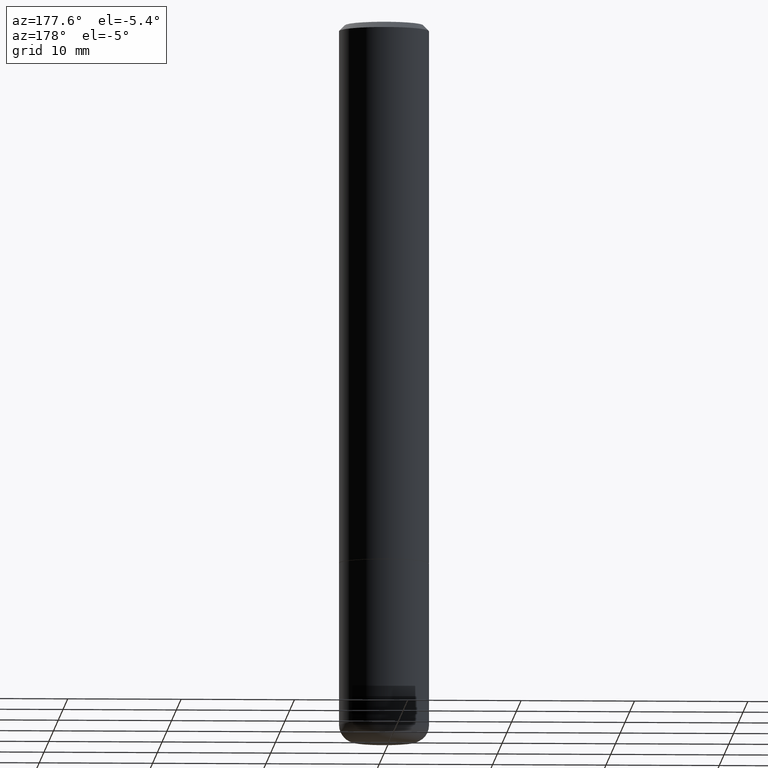
[diagram: clean part render]
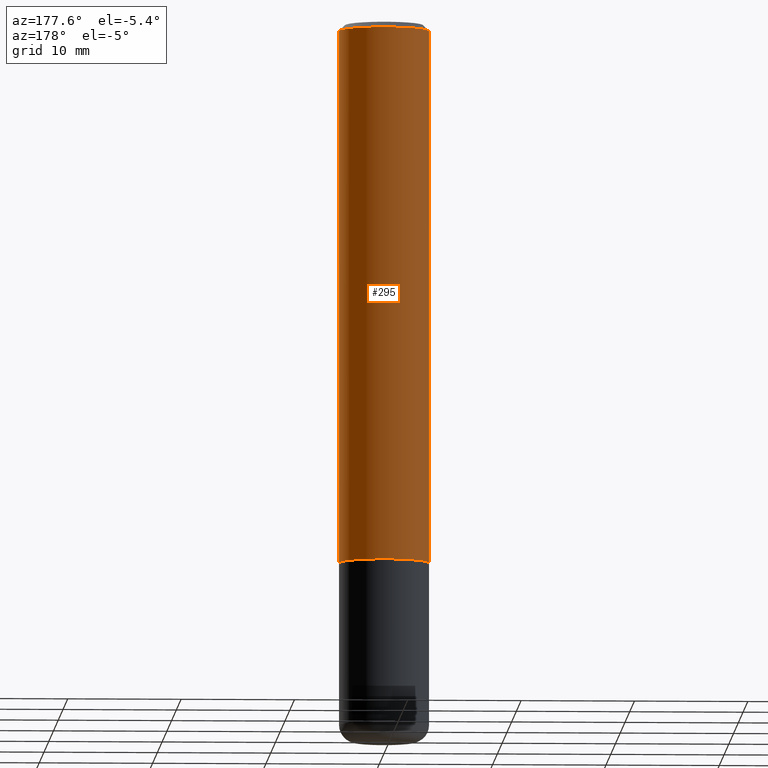
[diagram: same view with one face highlighted and labeled with its STEP entity id]
A machine part, auxiliary view. The second image highlights one B-rep face of the part: STEP entity #295.
In plain terms, the highlighted cylindrical surface (partial cylindrical patch) has radius 3.9688 mm, axis along (-0, 0, 1).
Its self-contained STEP definition (entity closure, byte-faithful):
#5 = DIRECTION ( 'NONE',  ( -2.445468806185136597E-29, 3.491481338843145583E-15, 1.000000000000000000 ) ) ;
#11 = ORIENTED_EDGE ( 'NONE', *, *, #151, .F. ) ;
#37 = VERTEX_POINT ( 'NONE', #358 ) ;
#44 = FACE_OUTER_BOUND ( 'NONE', #300, .T. ) ;
#45 = ORIENTED_EDGE ( 'NONE', *, *, #89, .T. ) ;
#57 = CARTESIAN_POINT ( 'NONE',  ( -0.1562500000000002220, -2.196209803259299803E-15, -1.874000000000000110 ) ) ;
#65 = CIRCLE ( 'NONE', #417, 0.1562500000000000278 ) ;
#68 = CARTESIAN_POINT ( 'NONE',  ( 0.1562500000000001388, -1.091087918388480160E-15, 7.619026212181157383E-30 ) ) ;
#70 = CYLINDRICAL_SURFACE ( 'NONE', #161, 0.1562500000000001388 ) ;
#80 = VERTEX_POINT ( 'NONE', #397 ) ;
#89 = EDGE_CURVE ( 'NONE', #198, #80, #115, .T. ) ;
#109 = EDGE_CURVE ( 'NONE', #37, #198, #388, .T. ) ;
#111 = AXIS2_PLACEMENT_3D ( 'NONE', #205, #206, #329 ) ;
#115 = LINE ( 'NONE', #145, #225 ) ;
#136 = DIRECTION ( 'NONE',  ( 1.000000000000000000, -6.982962677686266711E-15, 4.876176775795936353E-29 ) ) ;
#145 = CARTESIAN_POINT ( 'NONE',  ( -0.1562500000000001388, 1.110223024625157526E-15, -7.685836078523296765E-30 ) ) ;
#148 = ORIENTED_EDGE ( 'NONE', *, *, #291, .F. ) ;
#151 = EDGE_CURVE ( 'NONE', #240, #80, #65, .T. ) ;
#161 = AXIS2_PLACEMENT_3D ( 'NONE', #165, #5, #136 ) ;
#165 = CARTESIAN_POINT ( 'NONE',  ( 0.000000000000000000, 0.000000000000000000, 0.000000000000000000 ) ) ;
#166 = LINE ( 'NONE', #68, #374 ) ;
#179 = DIRECTION ( 'NONE',  ( 1.000000000000000000, -6.982962677686266711E-15, 0.000000000000000000 ) ) ;
#185 = CARTESIAN_POINT ( 'NONE',  ( 0.1562500000000000278, -1.141782438928665105E-15, -0.02000000000000003511 ) ) ;
#198 = VERTEX_POINT ( 'NONE', #57 ) ;
#205 = CARTESIAN_POINT ( 'NONE',  ( 4.582808542790945516E-29, -6.543036028992054911E-15, -1.874000000000000110 ) ) ;
#206 = DIRECTION ( 'NONE',  ( -2.445468806185136597E-29, 3.491481338843145583E-15, 1.000000000000000000 ) ) ;
#207 = ORIENTED_EDGE ( 'NONE', *, *, #109, .T. ) ;
#225 = VECTOR ( 'NONE', #400, 39.37007874015748143 ) ;
#240 = VERTEX_POINT ( 'NONE', #185 ) ;
#251 = DIRECTION ( 'NONE',  ( -2.445468806185136877E-29, 3.491481338843145188E-15, 1.000000000000000000 ) ) ;
#291 = EDGE_CURVE ( 'NONE', #37, #240, #166, .T. ) ;
#295 = ADVANCED_FACE ( 'NONE', ( #44 ), #70, .T. ) ;
#300 = EDGE_LOOP ( 'NONE', ( #207, #45, #11, #148 ) ) ;
#329 = DIRECTION ( 'NONE',  ( 1.000000000000000000, -6.982962677686265922E-15, 0.000000000000000000 ) ) ;
#358 = CARTESIAN_POINT ( 'NONE',  ( 0.1562500000000002220, -7.634123947380535662E-15, -1.874000000000000110 ) ) ;
#374 = VECTOR ( 'NONE', #251, 39.37007874015748143 ) ;
#388 = CIRCLE ( 'NONE', #111, 0.1562500000000002220 ) ;
#397 = CARTESIAN_POINT ( 'NONE',  ( -0.1562500000000000278, 1.021258291611616467E-15, -0.02000000000000003511 ) ) ;
#400 = DIRECTION ( 'NONE',  ( -2.445468806185136877E-29, 3.491481338843145188E-15, 1.000000000000000000 ) ) ;
#411 = CARTESIAN_POINT ( 'NONE',  ( 4.890937612370281041E-31, -6.982962677686302702E-17, -0.02000000000000003511 ) ) ;
#413 = DIRECTION ( 'NONE',  ( -2.445468806185136597E-29, 3.491481338843145583E-15, 1.000000000000000000 ) ) ;
#417 = AXIS2_PLACEMENT_3D ( 'NONE', #411, #413, #179 ) ;